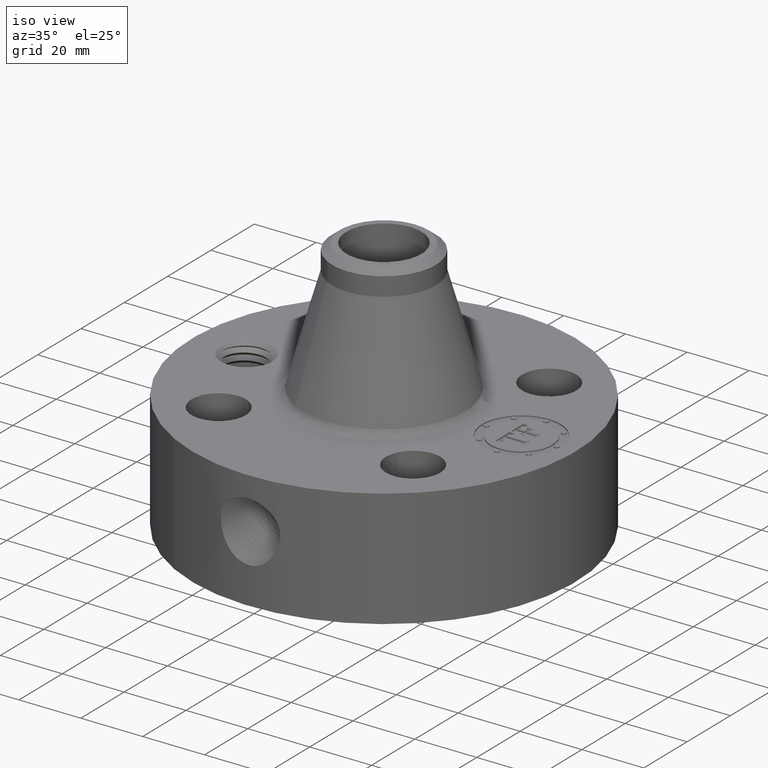
[diagram: clean part render]
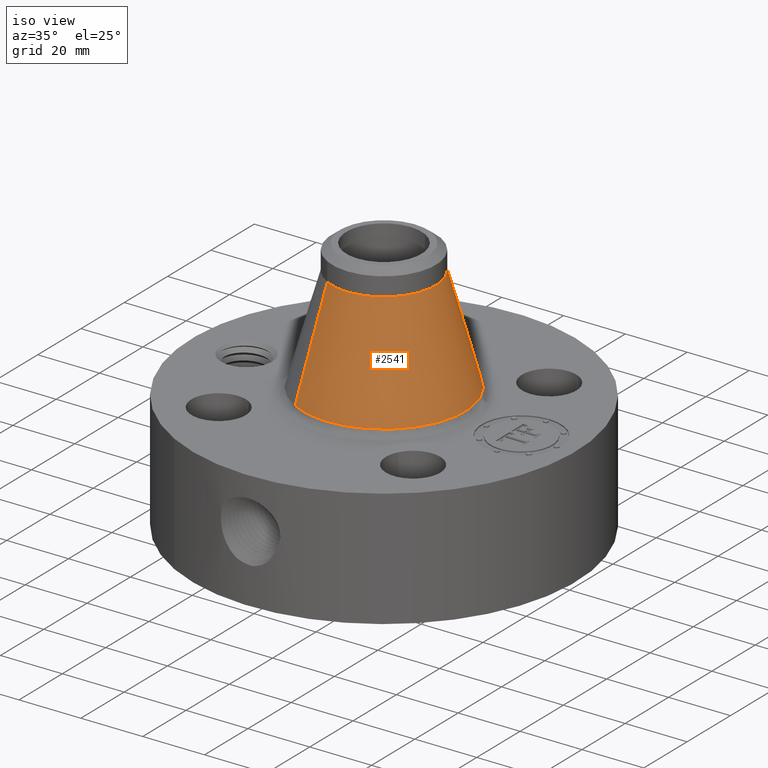
[diagram: same view with one face highlighted and labeled with its STEP entity id]
A machine part, iso view. The second image highlights one B-rep face of the part: STEP entity #2541.
In plain terms, the highlighted conical surface has half-angle 15.576 deg.
Its self-contained STEP definition (entity closure, byte-faithful):
#1843=AXIS2_PLACEMENT_3D('Circle Axis2P3D',#1841,#1842,$) ;
#2514=AXIS2_PLACEMENT_3D('Cone Axis2P3D',#2511,#2512,#2513) ;
#2525=AXIS2_PLACEMENT_3D('Circle Axis2P3D',#2523,#2524,$) ;
#1838=CARTESIAN_POINT('Vertex',(0.496460113538,0.908764142151,1.64777740799)) ;
#1841=CARTESIAN_POINT('Axis2P3D Location',(0.,0.,1.64777740799)) ;
#1845=CARTESIAN_POINT('Vertex',(-0.496460113538,-0.908764142151,1.64777740799)) ;
#2511=CARTESIAN_POINT('Axis2P3D Location',(0.,0.,2.99492912713)) ;
#2516=CARTESIAN_POINT('Line Origine',(0.406440484509,0.743984316501,2.32135326756)) ;
#2520=CARTESIAN_POINT('Vertex',(0.31642085548,0.57920449085,2.99492912713)) ;
#2523=CARTESIAN_POINT('Axis2P3D Location',(0.,0.,2.99492912713)) ;
#2527=CARTESIAN_POINT('Vertex',(-0.31642085548,-0.57920449085,2.99492912713)) ;
#2530=CARTESIAN_POINT('Line Origine',(-0.406440484509,-0.743984316501,2.32135326756)) ;
#1842=DIRECTION('Axis2P3D Direction',(0.,0.,-0.0393700787402)) ;
#2512=DIRECTION('Axis2P3D Direction',(0.,0.,-0.0393700787402)) ;
#2513=DIRECTION('Axis2P3D XDirection',(-0.0188750212049,-0.0345504945626,0.)) ;
#2517=DIRECTION('Vector Direction',(0.00506835089648,0.00927755408533,-0.0379241599695)) ;
#2524=DIRECTION('Axis2P3D Direction',(0.,0.,-0.0393700787402)) ;
#2531=DIRECTION('Vector Direction',(-0.00506835089648,-0.00927755408533,-0.0379241599695)) ;
#2518=VECTOR('Line Direction',#2517,0.0393700787402) ;
#2532=VECTOR('Line Direction',#2531,0.0393700787402) ;
#2536=ORIENTED_EDGE('',*,*,#1847,.F.) ;
#2537=ORIENTED_EDGE('',*,*,#2522,.T.) ;
#2538=ORIENTED_EDGE('',*,*,#2529,.T.) ;
#2539=ORIENTED_EDGE('',*,*,#2534,.F.) ;
#2541=ADVANCED_FACE('PartBody',(#2540),#2515,.T.) ;
#1844=CIRCLE('generated circle',#1843,1.03553122135) ;
#2526=CIRCLE('generated circle',#2525,0.660000000003) ;
#2515=CONICAL_SURFACE('Cone',#2514,0.660000000003,0.271857936206) ;
#1847=EDGE_CURVE('',#1839,#1846,#1844,.T.) ;
#2522=EDGE_CURVE('',#1839,#2521,#2519,.F.) ;
#2529=EDGE_CURVE('',#2521,#2528,#2526,.T.) ;
#2534=EDGE_CURVE('',#1846,#2528,#2533,.F.) ;
#2535=EDGE_LOOP('',(#2536,#2537,#2538,#2539)) ;
#2540=FACE_OUTER_BOUND('',#2535,.T.) ;
#2519=LINE('Line',#2516,#2518) ;
#2533=LINE('Line',#2530,#2532) ;
#1839=VERTEX_POINT('',#1838) ;
#1846=VERTEX_POINT('',#1845) ;
#2521=VERTEX_POINT('',#2520) ;
#2528=VERTEX_POINT('',#2527) ;